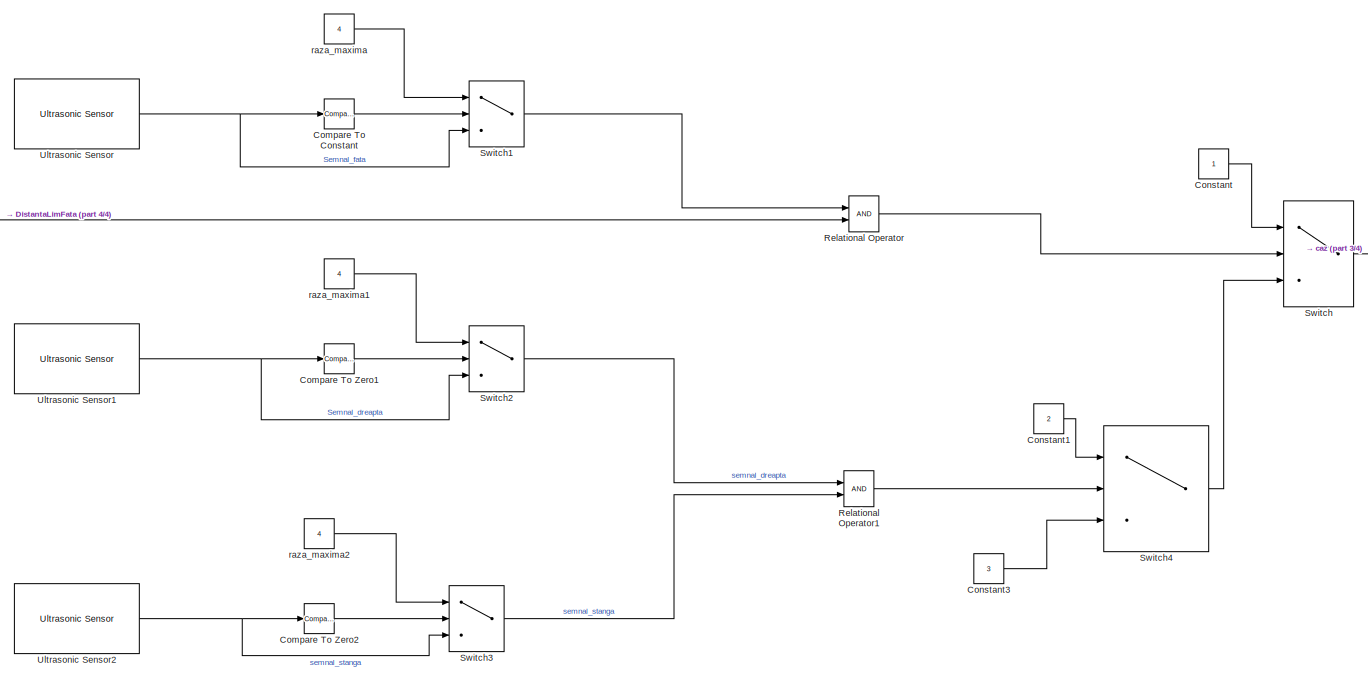
[diagram: root canvas - part 1/4, left side, full height]
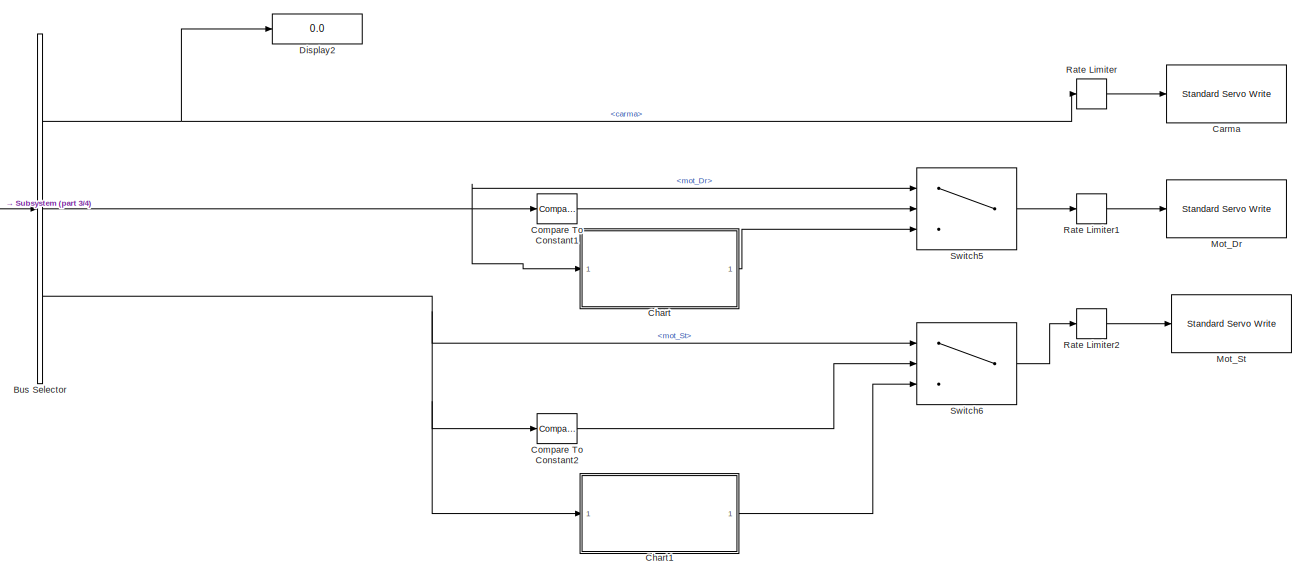
[diagram: root canvas - part 2/4, right side, full height]
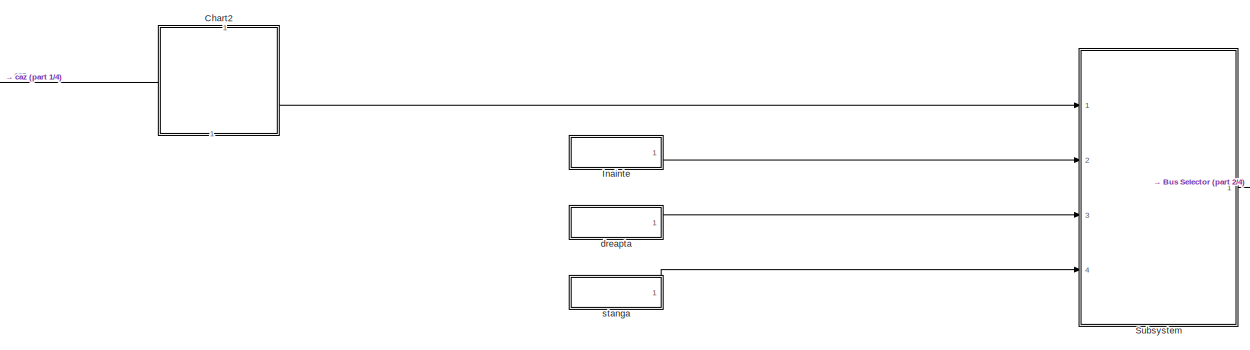
[diagram: root canvas - part 3/4, central region]
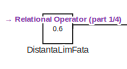
[diagram: root canvas - part 4/4, middle left region]
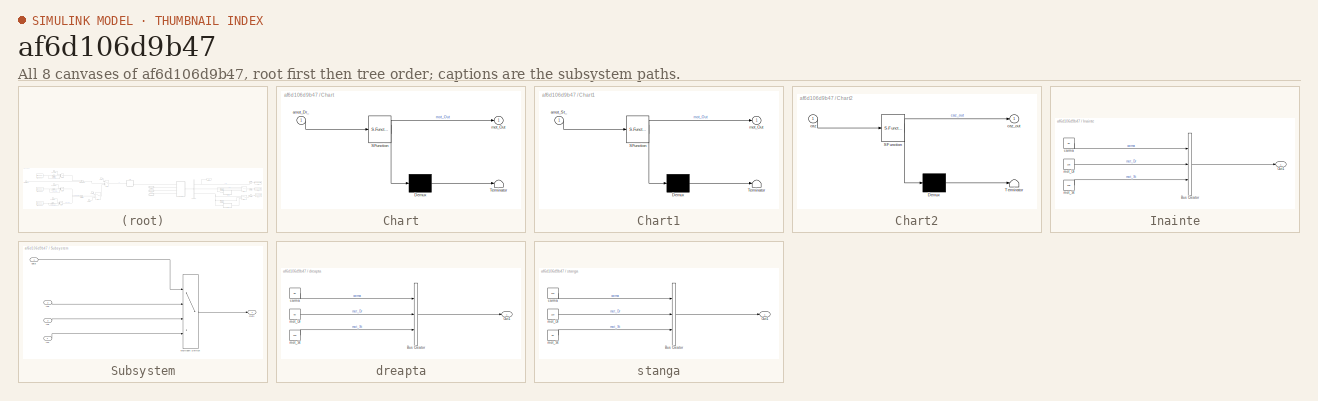
[diagram: thumbnail index - all 8 canvases of the model, root first then tree order]
MODEL slx_af6d106d9b47
KIND model
CONFIG AbsTol = auto
CONFIG EnableMultiTasking = off
CONFIG FixedStep = 0.1
CONFIG MaxStep = auto
CONFIG MinStep = auto
CONFIG RelTol = 1e-3
CONFIG SampleTimeConstraint = Unconstrained
CONFIG SolverName = ode8
CONFIG StartTime = 0.0
CONFIG StopTime = inf
BLOCK [BusSelector] Bus Selector
  OutputSignals = carma,mot_Dr,mot_St
  Ports = [1, 3]
BLOCK [Reference] Carma  REF=arduinolib/Standard Servo Write
  Ports = [1]
  SourceBlock = arduinolib/Standard Servo Write
  SourceProductBaseCode = ARDUINO
  SourceType = Arduino Standard Servo Write
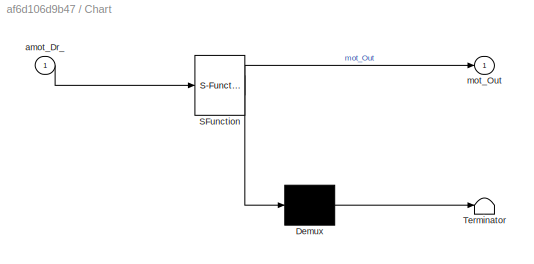
BLOCK [SubSystem] Chart
  ErrorFcn = Stateflow.Translate.translate
  PermitHierarchicalResolution = ExplicitOnly
  Ports = [1, 1]
  RequestExecContextInheritance = off
  SFBlockType = Chart
  TreatAsAtomicUnit = on
BLOCK [Demux] Chart/ Demux 
  Outputs = 1
  Ports = [1, 1]
BLOCK [S-Function] Chart/ SFunction 
  EnableBusSupport = on
  FunctionName = sf_sfun
  PortCounts = [1 2]
  Ports = [1, 2]
  SFcnIsStateOwnerBlock = off
  SFunctionDeploymentMode = off
  Tag = Stateflow S-Function 3
BLOCK [Terminator] Chart/ Terminator 
BLOCK [Inport] Chart/amot_Dr_
BLOCK [Outport] Chart/mot_Out
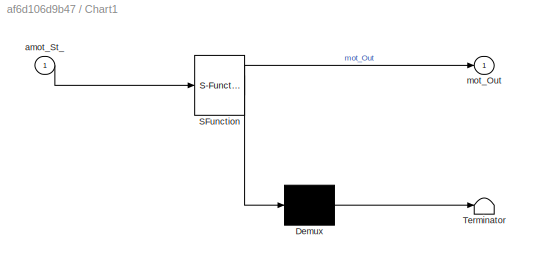
BLOCK [SubSystem] Chart1
  ErrorFcn = Stateflow.Translate.translate
  PermitHierarchicalResolution = ExplicitOnly
  Ports = [1, 1]
  RequestExecContextInheritance = off
  SFBlockType = Chart
  TreatAsAtomicUnit = on
BLOCK [Demux] Chart1/ Demux 
  Outputs = 1
  Ports = [1, 1]
BLOCK [S-Function] Chart1/ SFunction 
  EnableBusSupport = on
  FunctionName = sf_sfun
  PortCounts = [1 2]
  Ports = [1, 2]
  SFcnIsStateOwnerBlock = off
  SFunctionDeploymentMode = off
  Tag = Stateflow S-Function 1
BLOCK [Terminator] Chart1/ Terminator 
BLOCK [Inport] Chart1/amot_St_
BLOCK [Outport] Chart1/mot_Out
BLOCK [SubSystem] Chart2
  ErrorFcn = Stateflow.Translate.translate
  NameLocation = right
  PermitHierarchicalResolution = ExplicitOnly
  PortSchema = {"entries":[{"content":{"sides":[{"content":{"connectorIds":[]},"type":"ConnectorPlacement.EquallySpacedRectSide","uuid":"b65892ab-a4a5-42cf-9574-b562b3ab09c8"},{"content":{"connectorIds":[],"side":"RIGHT"},"type":"ConnectorPlacement.EquallySpacedRectSide","uuid":"2dcb0f11-f557-44d4-b00c-5c1b46d969f3"},{"content":{"connectorIds":["In1"],"side":"TOP"},"type":"ConnectorPlacement.EquallySpacedRectSid...<+384ch>
  Ports = [1, 1]
  RequestExecContextInheritance = off
  SFBlockType = Chart
  TreatAsAtomicUnit = on
BLOCK [Demux] Chart2/ Demux 
  Outputs = 1
  Ports = [1, 1]
BLOCK [S-Function] Chart2/ SFunction 
  EnableBusSupport = on
  FunctionName = sf_sfun
  PortCounts = [1 2]
  Ports = [1, 2]
  SFcnIsStateOwnerBlock = off
  SFunctionDeploymentMode = off
  Tag = Stateflow S-Function 2
BLOCK [Terminator] Chart2/ Terminator 
BLOCK [Inport] Chart2/caz
BLOCK [Outport] Chart2/caz_out
BLOCK [Reference] Compare To Constant  REF=simulink/Logic and Bit
Operations/Compare
To Constant
  Ports = [1, 1]
  SourceBlock = simulink/Logic and Bit\nOperations/Compare\nTo Constant
  SourceProductBaseCode = SL
  SourceType = Compare To Constant
BLOCK [Reference] Compare To Constant1  REF=simulink/Logic and Bit
Operations/Compare
To Constant
  Ports = [1, 1]
  SourceBlock = simulink/Logic and Bit\nOperations/Compare\nTo Constant
  SourceProductBaseCode = SL
  SourceType = Compare To Constant
BLOCK [Reference] Compare To Constant2  REF=simulink/Logic and Bit
Operations/Compare
To Constant
  Ports = [1, 1]
  SourceBlock = simulink/Logic and Bit\nOperations/Compare\nTo Constant
  SourceProductBaseCode = SL
  SourceType = Compare To Constant
BLOCK [Reference] Compare To Zero1  REF=simulink/Logic and Bit
Operations/Compare
To Zero
  Ports = [1, 1]
  SourceBlock = simulink/Logic and Bit\nOperations/Compare\nTo Zero
  SourceProductBaseCode = SL
  SourceType = Compare To Zero
BLOCK [Reference] Compare To Zero2  REF=simulink/Logic and Bit
Operations/Compare
To Zero
  Ports = [1, 1]
  SourceBlock = simulink/Logic and Bit\nOperations/Compare\nTo Zero
  SourceProductBaseCode = SL
  SourceType = Compare To Zero
BLOCK [Constant] Constant
  OutDataTypeStr = double
BLOCK [Constant] Constant1
  Value = 2
BLOCK [Constant] Constant3
  Value = 3
BLOCK [Display] Display2
  Decimation = 1
  Ports = [1]
BLOCK [Constant] DistantaLimFata
  Value = 0.6
BLOCK [SubSystem] Inainte
  Ports = [0, 1]
  RequestExecContextInheritance = off
BLOCK [BusCreator] Inainte/Bus Creator
  DisplayOption = bar
  InheritFromInputs = on
  Inputs = 3
  Ports = [3, 1]
BLOCK [Outport] Inainte/Out1
BLOCK [Constant] Inainte/carma
  Value = 90
BLOCK [Constant] Inainte/mot_Dr
  Value = 105
BLOCK [Constant] Inainte/mot_St
  Value = 105
BLOCK [Reference] Mot_Dr  REF=arduinolib/Standard Servo Write
  Ports = [1]
  SourceBlock = arduinolib/Standard Servo Write
  SourceProductBaseCode = ARDUINO
  SourceType = Arduino Standard Servo Write
BLOCK [Reference] Mot_St  REF=arduinolib/Standard Servo Write
  Ports = [1]
  SourceBlock = arduinolib/Standard Servo Write
  SourceProductBaseCode = ARDUINO
  SourceType = Arduino Standard Servo Write
BLOCK [RateLimiter] Rate Limiter
  FallingSlewLimit = -5000
  RisingSlewLimit = 5000
  SampleTimeMode = inherited
BLOCK [RateLimiter] Rate Limiter1
  FallingSlewLimit = -250
  RisingSlewLimit = 250
  SampleTimeMode = inherited
BLOCK [RateLimiter] Rate Limiter2
  FallingSlewLimit = -250
  RisingSlewLimit = 250
  SampleTimeMode = inherited
BLOCK [RelationalOperator] Relational Operator
  InputSameDT = off
  OutDataTypeStr = boolean
  Ports = [2, 1]
  RndMeth = Simplest
BLOCK [RelationalOperator] Relational Operator1
  InputSameDT = off
  OutDataTypeStr = boolean
  Ports = [2, 1]
  RndMeth = Simplest
BLOCK [SubSystem] Subsystem
  Ports = [4, 1]
  RequestExecContextInheritance = off
BLOCK [Inport] Subsystem/In2
  Port = 2
BLOCK [Inport] Subsystem/In3
  Port = 3
BLOCK [Inport] Subsystem/In4
  Port = 4
BLOCK [MultiPortSwitch] Subsystem/Multiport Switch
  DiagnosticForDefault = None
  InputSameDT = off
  Ports = [4, 1]
  SaturateOnIntegerOverflow = off
BLOCK [Outport] Subsystem/Out1
BLOCK [Inport] Subsystem/data
BLOCK [Switch] Switch
  Criteria = u2 > Threshold
  InputSameDT = off
  OutDataTypeStr = double
  SaturateOnIntegerOverflow = off
  Threshold = 0.5
BLOCK [Switch] Switch1
  Criteria = u2 > Threshold
  InputSameDT = off
  SaturateOnIntegerOverflow = off
  Threshold = 0.5
BLOCK [Switch] Switch2
  Criteria = u2 > Threshold
  InputSameDT = off
  SaturateOnIntegerOverflow = off
  Threshold = 0.5
BLOCK [Switch] Switch3
  Criteria = u2 > Threshold
  InputSameDT = off
  SaturateOnIntegerOverflow = off
  Threshold = 0.5
BLOCK [Switch] Switch4
  Criteria = u2 > Threshold
  InputSameDT = off
  OutDataTypeStr = double
  SaturateOnIntegerOverflow = off
  Threshold = 0.5
BLOCK [Switch] Switch5
  Criteria = u2 > Threshold
  InputSameDT = off
  SaturateOnIntegerOverflow = off
  Threshold = 0.5
BLOCK [Switch] Switch6
  Criteria = u2 > Threshold
  InputSameDT = off
  SaturateOnIntegerOverflow = off
  Threshold = 0.5
BLOCK [Reference] Ultrasonic Sensor  REF=arduinosensorlib/Ultrasonic Sensor
  Ports = [0, 1]
  SourceBlock = arduinosensorlib/Ultrasonic Sensor
  SourceProductBaseCode = ARDUINO
  SourceType = Arduino Ultrasonic Sensor
BLOCK [Reference] Ultrasonic Sensor1  REF=arduinosensorlib/Ultrasonic Sensor
  Ports = [0, 1]
  SourceBlock = arduinosensorlib/Ultrasonic Sensor
  SourceProductBaseCode = ARDUINO
  SourceType = Arduino Ultrasonic Sensor
BLOCK [Reference] Ultrasonic Sensor2  REF=arduinosensorlib/Ultrasonic Sensor
  Ports = [0, 1]
  SourceBlock = arduinosensorlib/Ultrasonic Sensor
  SourceProductBaseCode = ARDUINO
  SourceType = Arduino Ultrasonic Sensor
BLOCK [SubSystem] dreapta
  Ports = [0, 1]
  RequestExecContextInheritance = off
BLOCK [BusCreator] dreapta/Bus Creator
  DisplayOption = bar
  InheritFromInputs = on
  Inputs = 3
  Ports = [3, 1]
BLOCK [Outport] dreapta/Out1
BLOCK [Constant] dreapta/carma
  Value = 80
BLOCK [Constant] dreapta/mot_Dr
  Value = 60
BLOCK [Constant] dreapta/mot_St
  Value = 120
BLOCK [Constant] raza_maxima
  Value = 4
BLOCK [Constant] raza_maxima1
  Value = 4
BLOCK [Constant] raza_maxima2
  Value = 4
BLOCK [SubSystem] stanga
  Ports = [0, 1]
  RequestExecContextInheritance = off
BLOCK [BusCreator] stanga/Bus Creator
  DisplayOption = bar
  InheritFromInputs = on
  Inputs = 3
  Ports = [3, 1]
BLOCK [Outport] stanga/Out1
BLOCK [Constant] stanga/carma
  Value = 110
BLOCK [Constant] stanga/mot_Dr
  Value = 120
BLOCK [Constant] stanga/mot_St
  Value = 60
NET Bus Selector:1 -> Display2:1, Rate Limiter:1
NET Bus Selector:2 -> Chart:1, Compare To Constant1:1, Switch5:1
NET Bus Selector:3 -> Chart1:1, Compare To Constant2:1, Switch6:1
LINE Chart1:1 -> Switch6:3
LINE Chart2:1 -> Subsystem:1
LINE Chart:1 -> Switch5:3
LINE Compare To Constant1:1 -> Switch5:2
LINE Compare To Constant2:1 -> Switch6:2
LINE Compare To Constant:1 -> Switch1:2
LINE Compare To Zero1:1 -> Switch2:2
LINE Compare To Zero2:1 -> Switch3:2
LINE Constant1:1 -> Switch4:1
LINE Constant3:1 -> Switch4:3
LINE Constant:1 -> Switch:1
LINE DistantaLimFata:1 -> Relational Operator:2
LINE Inainte/Bus Creator:1 -> Inainte/Out1:1
LINE Inainte/carma:1 -> Inainte/Bus Creator:1
LINE Inainte/mot_Dr:1 -> Inainte/Bus Creator:2
LINE Inainte/mot_St:1 -> Inainte/Bus Creator:3
LINE Inainte:1 -> Subsystem:2
LINE Rate Limiter1:1 -> Mot_Dr:1
LINE Rate Limiter2:1 -> Mot_St:1
LINE Rate Limiter:1 -> Carma:1
LINE Relational Operator1:1 -> Switch4:2
LINE Relational Operator:1 -> Switch:2
LINE Subsystem/In2:1 -> Subsystem/Multiport Switch:2
LINE Subsystem/In3:1 -> Subsystem/Multiport Switch:3
LINE Subsystem/In4:1 -> Subsystem/Multiport Switch:4
LINE Subsystem/Multiport Switch:1 -> Subsystem/Out1:1
LINE Subsystem/data:1 -> Subsystem/Multiport Switch:1
LINE Subsystem:1 -> Bus Selector:1
LINE Switch1:1 -> Relational Operator:1
LINE Switch2:1 -> Relational Operator1:1
LINE Switch3:1 -> Relational Operator1:2
LINE Switch4:1 -> Switch:3
LINE Switch5:1 -> Rate Limiter1:1
LINE Switch6:1 -> Rate Limiter2:1
LINE Switch:1 -> Chart2:1
NET Ultrasonic Sensor1:1 -> Compare To Zero1:1, Switch2:3
NET Ultrasonic Sensor2:1 -> Compare To Zero2:1, Switch3:3
NET Ultrasonic Sensor:1 -> Compare To Constant:1, Switch1:3
LINE dreapta/Bus Creator:1 -> dreapta/Out1:1
LINE dreapta/carma:1 -> dreapta/Bus Creator:1
LINE dreapta/mot_Dr:1 -> dreapta/Bus Creator:2
LINE dreapta/mot_St:1 -> dreapta/Bus Creator:3
LINE dreapta:1 -> Subsystem:3
LINE raza_maxima1:1 -> Switch2:1
LINE raza_maxima2:1 -> Switch3:1
LINE raza_maxima:1 -> Switch1:1
LINE stanga/Bus Creator:1 -> stanga/Out1:1
LINE stanga/carma:1 -> stanga/Bus Creator:1
LINE stanga/mot_Dr:1 -> stanga/Bus Creator:2
LINE stanga/mot_St:1 -> stanga/Bus Creator:3
LINE stanga:1 -> Subsystem:4
note: NET lines group one-source signal fan-out (src -> all destinations, sorted); 1:1 wires keep LINE
CHART Chart1 states=4 transitions=5
  STATE_LABEL 'reverse_2\n\nmot_Out = 60;'
  STATE_LABEL 'reverse_1\n\nmot_Out = 90;'
  STATE_LABEL 'Reverse_e_activ\nentry:\nmot_Out = 90;'
  STATE_LABEL 'reverse_3\n\nmot_Out = 60;'
CHART Chart2 states=3 transitions=4
  STATE_LABEL 'default\nentry:\ncaz_out = caz;\ncaz_intern = caz;'
  STATE_LABEL 'default1\nentry:\ncaz_out = caz;\ncaz_intern = caz;'
  STATE_LABEL 'default2\nentry:\ncaz_out = caz_intern;'
CHART Chart states=4 transitions=5
  STATE_LABEL 'reverse_2\n\nmot_Out = 60;'
  STATE_LABEL 'reverse_1\n\nmot_Out = 90;'
  STATE_LABEL 'Reverse_e_activ\nentry:\nmot_Out = 90;'
  STATE_LABEL 'reverse_3\n\nmot_Out = 60;'
CHART  states=0 transitions=0
CHART  states=0 transitions=0
CHART  states=0 transitions=0
